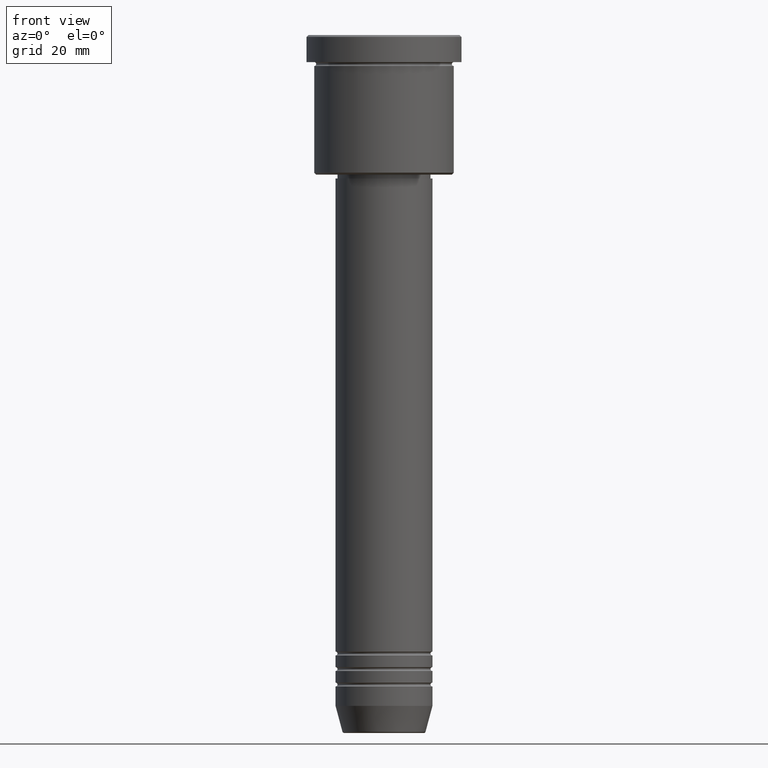
[diagram: clean part render]
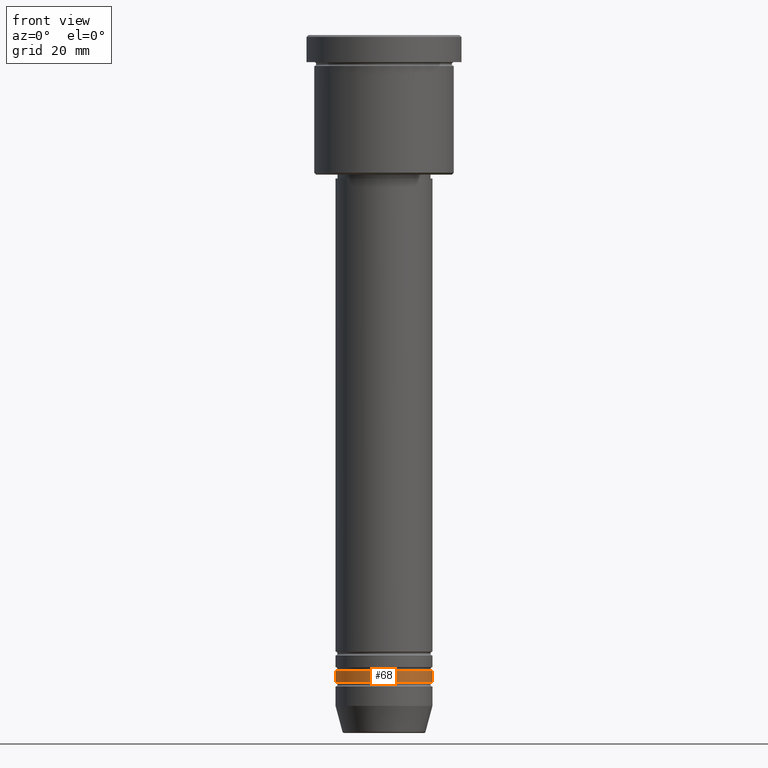
[diagram: same view with one face highlighted and labeled with its STEP entity id]
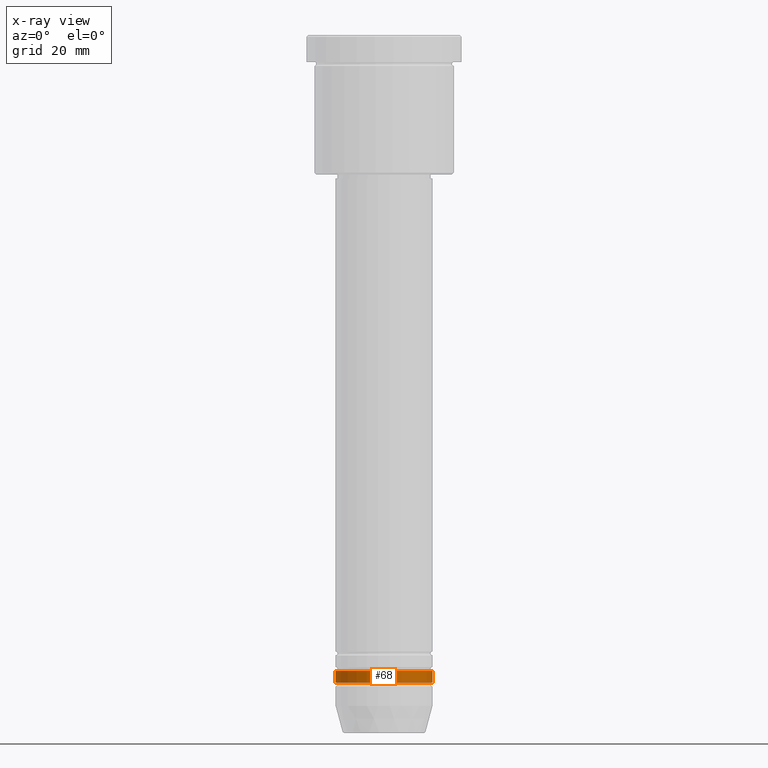
[diagram: x-ray of the same camera — body ghosted, the highlighted face saturated]
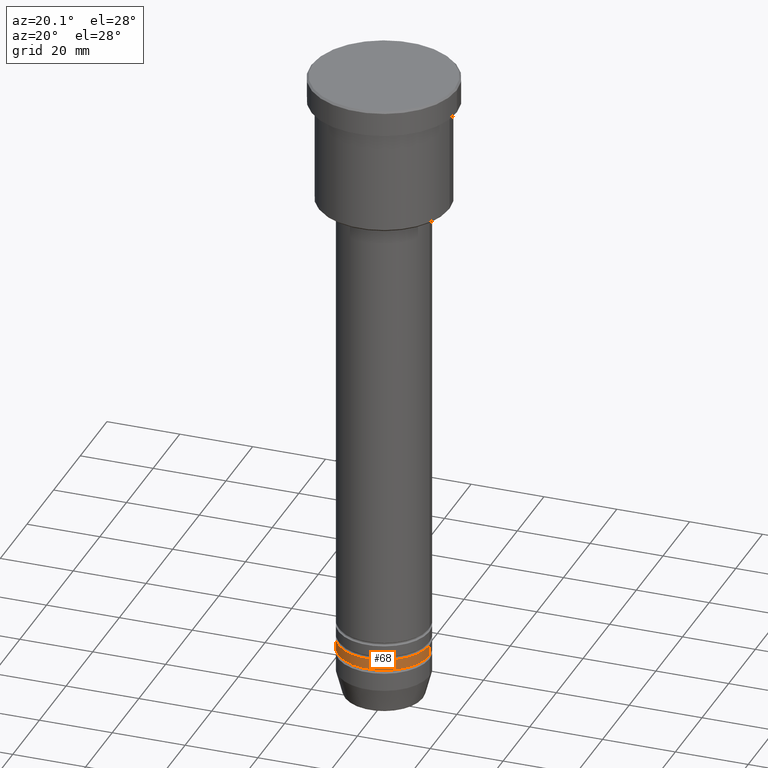
[diagram: same view with one face highlighted and labeled with its STEP entity id]
A machine part, front view. The second image highlights one B-rep face of the part: STEP entity #68.
The next image is the same camera in x-ray: the body ghosted, the highlighted face saturated — about 0% of this face is hidden behind the body in this view.
A second angle (auxiliary view) of the same face is appended — the face is thin or edge-on in the first view.
In plain terms, the highlighted cylindrical surface (partial cylindrical patch) has radius 12.5 mm, axis along (-0, -0, 1).
Its self-contained STEP definition (entity closure, byte-faithful):
#32 = EDGE_LOOP ( 'NONE', ( #555, #390, #449, #123 ) ) ;
#52 = EDGE_CURVE ( 'NONE', #823, #1158, #200, .T. ) ;
#54 = CARTESIAN_POINT ( 'NONE',  ( -12.50000000000000000, 1.530808498934191521E-15, 0.000000000000000000 ) ) ;
#68 = ADVANCED_FACE ( 'NONE', ( #323 ), #510, .T. ) ;
#76 = CARTESIAN_POINT ( 'NONE',  ( 12.50000000000000000, 0.000000000000000000, -166.9999999999999716 ) ) ;
#89 = CARTESIAN_POINT ( 'NONE',  ( -12.50000000000000000, 1.530808498934191521E-15, -164.0000000000000000 ) ) ;
#100 = EDGE_CURVE ( 'NONE', #1122, #220, #137, .T. ) ;
#123 = ORIENTED_EDGE ( 'NONE', *, *, #857, .F. ) ;
#137 = LINE ( 'NONE', #54, #691 ) ;
#200 = LINE ( 'NONE', #240, #980 ) ;
#217 = DIRECTION ( 'NONE',  ( -0.000000000000000000, -0.000000000000000000, 1.000000000000000000 ) ) ;
#220 = VERTEX_POINT ( 'NONE', #89 ) ;
#222 = EDGE_CURVE ( 'NONE', #1122, #823, #480, .T. ) ;
#240 = CARTESIAN_POINT ( 'NONE',  ( 12.50000000000000000, 0.000000000000000000, 0.000000000000000000 ) ) ;
#278 = AXIS2_PLACEMENT_3D ( 'NONE', #526, #1050, #786 ) ;
#292 = CARTESIAN_POINT ( 'NONE',  ( 0.000000000000000000, 0.000000000000000000, -164.0000000000000000 ) ) ;
#323 = FACE_OUTER_BOUND ( 'NONE', #32, .T. ) ;
#390 = ORIENTED_EDGE ( 'NONE', *, *, #222, .T. ) ;
#449 = ORIENTED_EDGE ( 'NONE', *, *, #52, .T. ) ;
#457 = DIRECTION ( 'NONE',  ( 1.000000000000000000, 0.000000000000000000, 0.000000000000000000 ) ) ;
#473 = CARTESIAN_POINT ( 'NONE',  ( -12.50000000000000000, 1.530808498934191521E-15, -166.9999999999999716 ) ) ;
#480 = CIRCLE ( 'NONE', #943, 12.50000000000000000 ) ;
#510 = CYLINDRICAL_SURFACE ( 'NONE', #278, 12.50000000000000000 ) ;
#526 = CARTESIAN_POINT ( 'NONE',  ( 0.000000000000000000, 0.000000000000000000, 0.000000000000000000 ) ) ;
#545 = DIRECTION ( 'NONE',  ( -0.000000000000000000, -0.000000000000000000, 1.000000000000000000 ) ) ;
#555 = ORIENTED_EDGE ( 'NONE', *, *, #100, .F. ) ;
#573 = AXIS2_PLACEMENT_3D ( 'NONE', #292, #217, #1136 ) ;
#608 = DIRECTION ( 'NONE',  ( -0.000000000000000000, -0.000000000000000000, 1.000000000000000000 ) ) ;
#691 = VECTOR ( 'NONE', #761, 1000.000000000000000 ) ;
#761 = DIRECTION ( 'NONE',  ( -0.000000000000000000, -0.000000000000000000, 1.000000000000000000 ) ) ;
#786 = DIRECTION ( 'NONE',  ( 1.000000000000000000, 0.000000000000000000, 0.000000000000000000 ) ) ;
#823 = VERTEX_POINT ( 'NONE', #76 ) ;
#857 = EDGE_CURVE ( 'NONE', #220, #1158, #906, .T. ) ;
#906 = CIRCLE ( 'NONE', #573, 12.50000000000000000 ) ;
#943 = AXIS2_PLACEMENT_3D ( 'NONE', #991, #545, #457 ) ;
#980 = VECTOR ( 'NONE', #608, 1000.000000000000000 ) ;
#991 = CARTESIAN_POINT ( 'NONE',  ( 0.000000000000000000, 0.000000000000000000, -166.9999999999999716 ) ) ;
#1050 = DIRECTION ( 'NONE',  ( -0.000000000000000000, -0.000000000000000000, 1.000000000000000000 ) ) ;
#1122 = VERTEX_POINT ( 'NONE', #473 ) ;
#1136 = DIRECTION ( 'NONE',  ( 1.000000000000000000, 0.000000000000000000, 0.000000000000000000 ) ) ;
#1138 = CARTESIAN_POINT ( 'NONE',  ( 12.50000000000000000, 0.000000000000000000, -164.0000000000000000 ) ) ;
#1158 = VERTEX_POINT ( 'NONE', #1138 ) ;